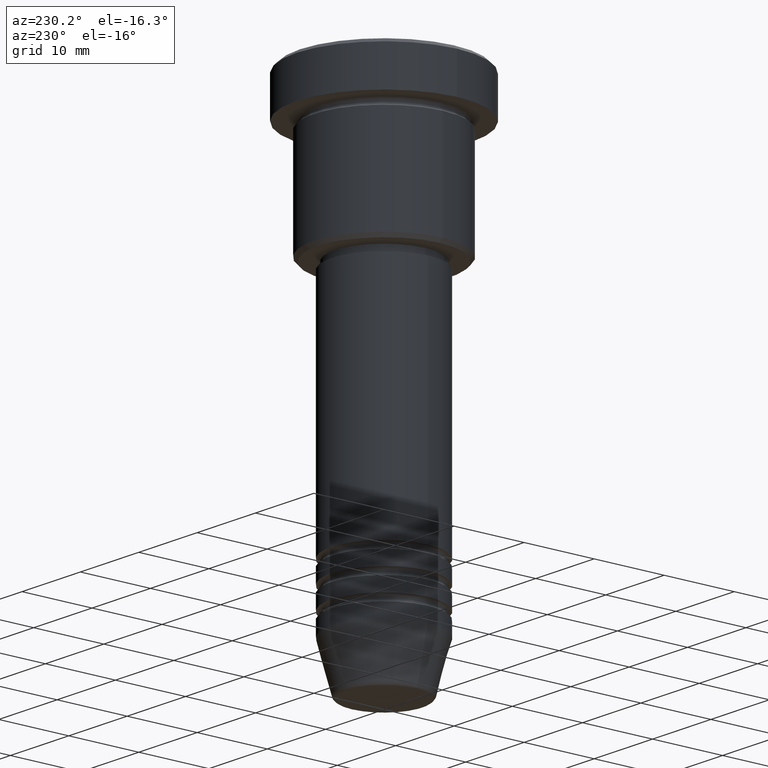
[diagram: clean part render]
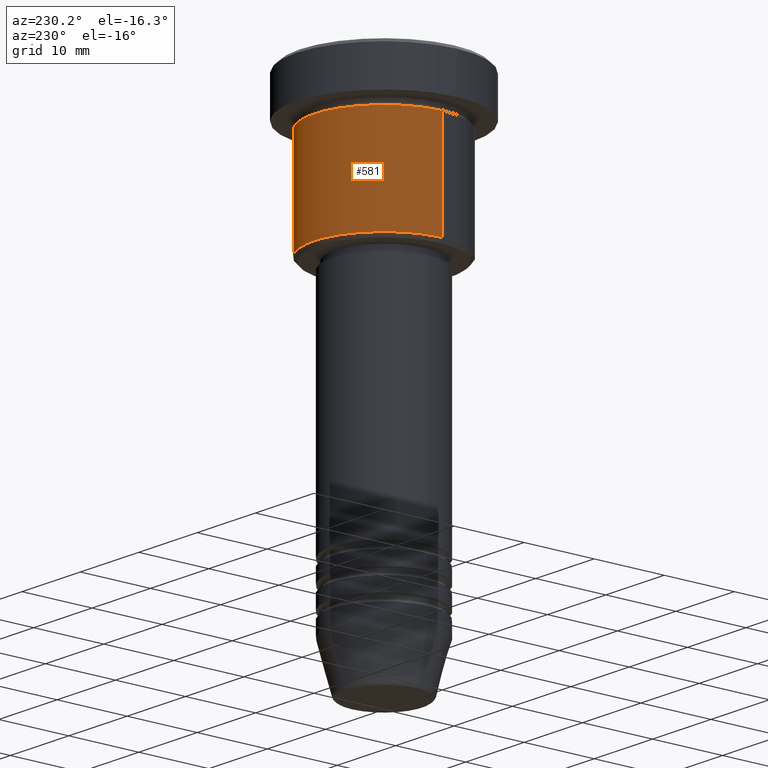
[diagram: same view with one face highlighted and labeled with its STEP entity id]
A machine part, auxiliary view. The second image highlights one B-rep face of the part: STEP entity #581.
In plain terms, the highlighted cylindrical surface (partial cylindrical patch) has radius 10 mm, axis along (-0, -0, 1).
Its self-contained STEP definition (entity closure, byte-faithful):
#37 = DIRECTION ( 'NONE',  ( 1.000000000000000000, 0.000000000000000000, 0.000000000000000000 ) ) ;
#86 = VERTEX_POINT ( 'NONE', #315 ) ;
#163 = EDGE_CURVE ( 'NONE', #995, #552, #479, .T. ) ;
#176 = VECTOR ( 'NONE', #310, 1000.000000000000000 ) ;
#205 = ORIENTED_EDGE ( 'NONE', *, *, #857, .F. ) ;
#245 = ORIENTED_EDGE ( 'NONE', *, *, #163, .T. ) ;
#258 = DIRECTION ( 'NONE',  ( -0.000000000000000000, -0.000000000000000000, 1.000000000000000000 ) ) ;
#264 = VECTOR ( 'NONE', #1022, 1000.000000000000000 ) ;
#310 = DIRECTION ( 'NONE',  ( -0.000000000000000000, -0.000000000000000000, 1.000000000000000000 ) ) ;
#315 = CARTESIAN_POINT ( 'NONE',  ( 10.00000000000000000, 0.000000000000000000, -6.999999999999996447 ) ) ;
#316 = ORIENTED_EDGE ( 'NONE', *, *, #636, .T. ) ;
#329 = CARTESIAN_POINT ( 'NONE',  ( 0.000000000000000000, 0.000000000000000000, -6.999999999999996447 ) ) ;
#414 = AXIS2_PLACEMENT_3D ( 'NONE', #870, #677, #1043 ) ;
#479 = LINE ( 'NONE', #1130, #176 ) ;
#507 = CYLINDRICAL_SURFACE ( 'NONE', #414, 10.00000000000000000 ) ;
#521 = EDGE_CURVE ( 'NONE', #86, #552, #760, .T. ) ;
#523 = EDGE_LOOP ( 'NONE', ( #316, #245, #912, #205 ) ) ;
#552 = VERTEX_POINT ( 'NONE', #694 ) ;
#554 = CARTESIAN_POINT ( 'NONE',  ( 10.00000000000000000, 0.000000000000000000, 0.000000000000000000 ) ) ;
#581 = ADVANCED_FACE ( 'NONE', ( #1136 ), #507, .T. ) ;
#622 = DIRECTION ( 'NONE',  ( -1.000000000000000000, 0.000000000000000000, 0.000000000000000000 ) ) ;
#626 = CIRCLE ( 'NONE', #794, 10.00000000000000000 ) ;
#636 = EDGE_CURVE ( 'NONE', #692, #995, #626, .T. ) ;
#676 = CARTESIAN_POINT ( 'NONE',  ( -10.00000000000000000, 1.224646799147353256E-15, -21.49999999999999289 ) ) ;
#677 = DIRECTION ( 'NONE',  ( -0.000000000000000000, -0.000000000000000000, 1.000000000000000000 ) ) ;
#692 = VERTEX_POINT ( 'NONE', #1172 ) ;
#694 = CARTESIAN_POINT ( 'NONE',  ( -10.00000000000000000, 1.224646799147353256E-15, -6.999999999999996447 ) ) ;
#760 = CIRCLE ( 'NONE', #1102, 10.00000000000000000 ) ;
#794 = AXIS2_PLACEMENT_3D ( 'NONE', #1177, #258, #622 ) ;
#857 = EDGE_CURVE ( 'NONE', #692, #86, #1114, .T. ) ;
#866 = DIRECTION ( 'NONE',  ( -0.000000000000000000, -0.000000000000000000, 1.000000000000000000 ) ) ;
#870 = CARTESIAN_POINT ( 'NONE',  ( 0.000000000000000000, 0.000000000000000000, 0.000000000000000000 ) ) ;
#912 = ORIENTED_EDGE ( 'NONE', *, *, #521, .F. ) ;
#995 = VERTEX_POINT ( 'NONE', #676 ) ;
#1022 = DIRECTION ( 'NONE',  ( -0.000000000000000000, -0.000000000000000000, 1.000000000000000000 ) ) ;
#1043 = DIRECTION ( 'NONE',  ( 1.000000000000000000, 0.000000000000000000, 0.000000000000000000 ) ) ;
#1102 = AXIS2_PLACEMENT_3D ( 'NONE', #329, #866, #37 ) ;
#1114 = LINE ( 'NONE', #554, #264 ) ;
#1130 = CARTESIAN_POINT ( 'NONE',  ( -10.00000000000000000, 1.224646799147353256E-15, 0.000000000000000000 ) ) ;
#1136 = FACE_OUTER_BOUND ( 'NONE', #523, .T. ) ;
#1172 = CARTESIAN_POINT ( 'NONE',  ( 10.00000000000000000, 0.000000000000000000, -21.49999999999999289 ) ) ;
#1177 = CARTESIAN_POINT ( 'NONE',  ( 0.000000000000000000, 0.000000000000000000, -21.49999999999999289 ) ) ;